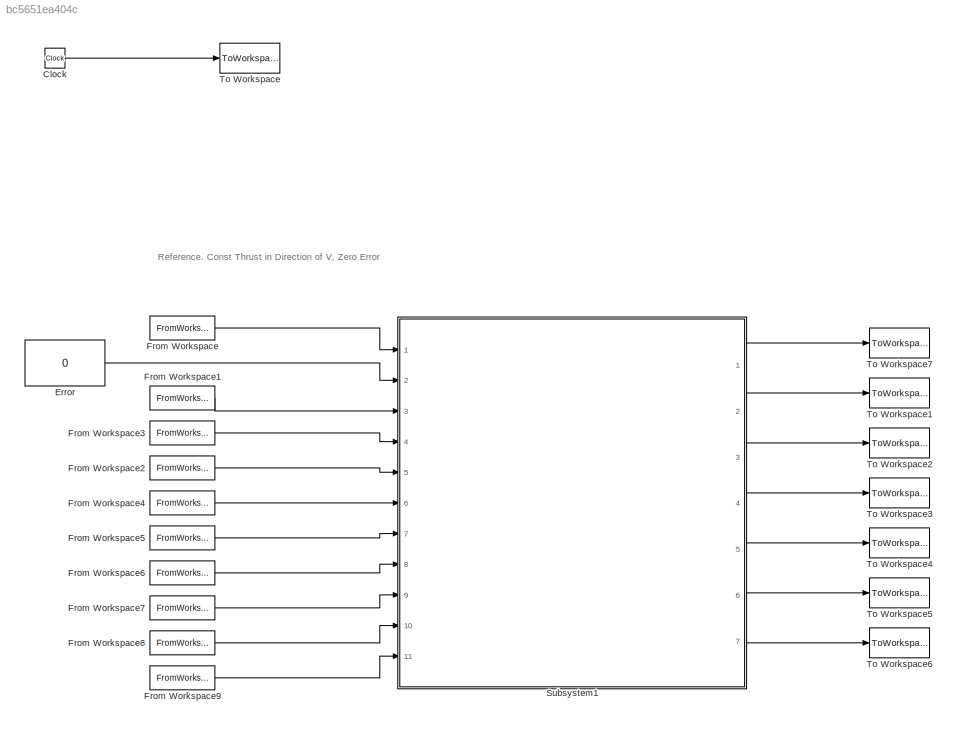
MODEL slx_bc5651ea404c
KIND model
CONFIG AbsTol = auto
CONFIG EnableMultiTasking = off
CONFIG FixedStep = 300
CONFIG InitFcn = % Enter your data here\n\ny10 = 152213668;\ny20 = 0;\ny30 = 0;\ny40 = 0;\ny50 = 34.5845;\ny60 = 0;\ny70 = 9700;
CONFIG MaxStep = auto
CONFIG MinStep = auto
CONFIG RelTol = 1e-3
CONFIG SampleTimeConstraint = Unconstrained
CONFIG Solver = ode4
CONFIG SolverName = ode4
CONFIG StartTime = 0.0
CONFIG StopTime = 10540800
WORKSPACE source: MAT-file member
WORKSPACE vx0 = -26
BLOCK [Clock] Clock
BLOCK [Constant] Error
  Value = 0
BLOCK [FromWorkspace] From Workspace
  SampleTime = 0
  VariableName = simin
  ZeroCross = on
BLOCK [FromWorkspace] From Workspace1
  SampleTime = 0
  VariableName = sim_e1
  ZeroCross = on
BLOCK [FromWorkspace] From Workspace2
  SampleTime = 0
  VariableName = sim_e3
  ZeroCross = on
BLOCK [FromWorkspace] From Workspace3
  SampleTime = 0
  VariableName = sim_e2
  ZeroCross = on
BLOCK [FromWorkspace] From Workspace4
  SampleTime = 0
  VariableName = sim_j1
  ZeroCross = on
BLOCK [FromWorkspace] From Workspace5
  SampleTime = 0
  VariableName = sim_j2
  ZeroCross = on
BLOCK [FromWorkspace] From Workspace6
  SampleTime = 0
  VariableName = sim_j3
  ZeroCross = on
BLOCK [FromWorkspace] From Workspace7
  SampleTime = 0
  VariableName = sim_m1
  ZeroCross = on
BLOCK [FromWorkspace] From Workspace8
  SampleTime = 0
  VariableName = sim_m2
  ZeroCross = on
BLOCK [FromWorkspace] From Workspace9
  SampleTime = 0
  VariableName = sim_m3
  ZeroCross = on
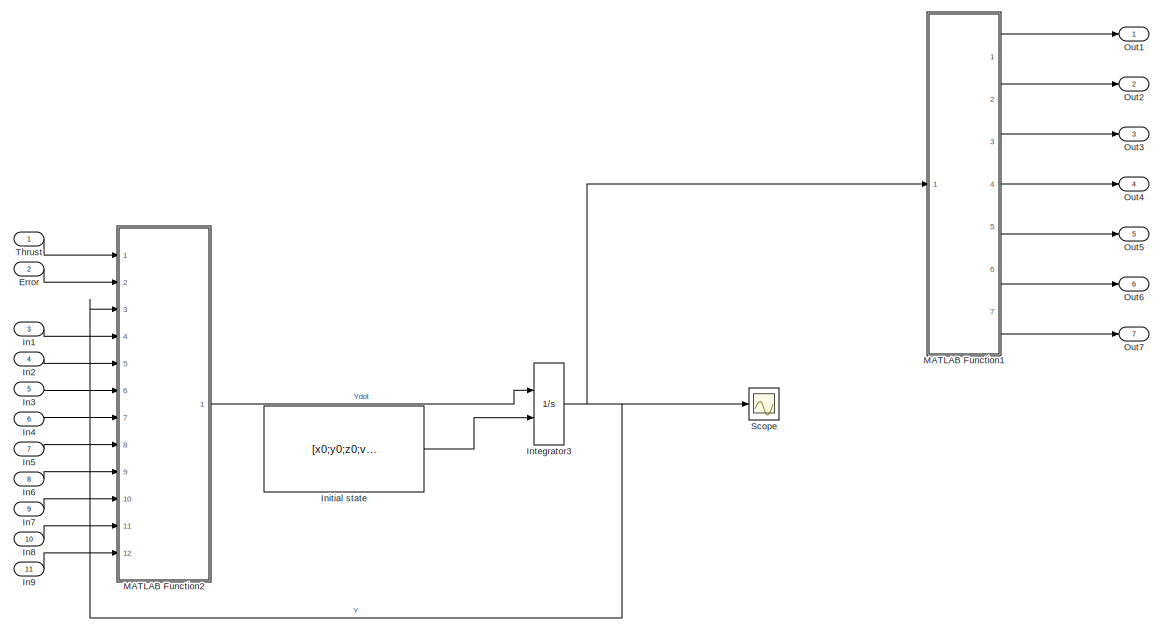
[diagram: Subsystem1 - part 1/2, center side, full height]
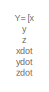
[diagram: Subsystem1 - part 2/2, middle left region]
BLOCK [SubSystem] Subsystem1
  Ports = [11, 7]
  RequestExecContextInheritance = off
BLOCK [Inport] Subsystem1/Error
  IconDisplay = Port number
  Port = 2
BLOCK [Inport] Subsystem1/In1
  IconDisplay = Port number
  Port = 3
BLOCK [Inport] Subsystem1/In2
  IconDisplay = Port number
  Port = 4
BLOCK [Inport] Subsystem1/In3
  IconDisplay = Port number
  Port = 5
BLOCK [Inport] Subsystem1/In4
  IconDisplay = Port number
  Port = 6
BLOCK [Inport] Subsystem1/In5
  IconDisplay = Port number
  Port = 7
BLOCK [Inport] Subsystem1/In6
  IconDisplay = Port number
  Port = 8
BLOCK [Inport] Subsystem1/In7
  IconDisplay = Port number
  Port = 9
BLOCK [Inport] Subsystem1/In8
  IconDisplay = Port number
  Port = 10
BLOCK [Inport] Subsystem1/In9
  IconDisplay = Port number
  Port = 11
BLOCK [Constant] Subsystem1/Initial state
  Value = [x0;y0;z0;vx0;vy0;vz0;y70]
BLOCK [Integrator] Subsystem1/Integrator3
  InitialCondition = [x0;y0;z0;vx0;vy0;vz0;y70]
  InitialConditionSource = external
  Ports = [2, 1]
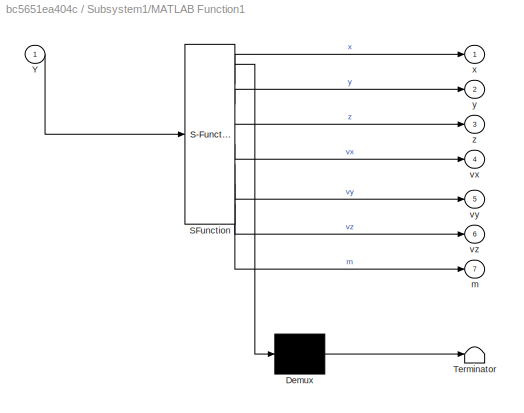
BLOCK [SubSystem] Subsystem1/MATLAB Function1
  ErrorFcn = Stateflow.Translate.translate
  PermitHierarchicalResolution = ExplicitOnly
  Ports = [1, 7]
  RequestExecContextInheritance = off
  SFBlockType = MATLAB Function
  TreatAsAtomicUnit = on
BLOCK [Demux] Subsystem1/MATLAB Function1/ Demux 
  Outputs = 1
  Ports = [1, 1]
BLOCK [S-Function] Subsystem1/MATLAB Function1/ SFunction 
  EnableBusSupport = on
  FunctionName = sf_sfun
  PortCounts = [1 8]
  Ports = [1, 8]
  SFcnIsStateOwnerBlock = off
  SFunctionDeploymentMode = off
  Tag = Stateflow S-Function PrevThrustTestingReturn 1
BLOCK [Terminator] Subsystem1/MATLAB Function1/ Terminator 
BLOCK [Inport] Subsystem1/MATLAB Function1/Y
  IconDisplay = Port number
BLOCK [Outport] Subsystem1/MATLAB Function1/m
  IconDisplay = Port number
  Port = 7
BLOCK [Outport] Subsystem1/MATLAB Function1/vx
  IconDisplay = Port number
  Port = 4
BLOCK [Outport] Subsystem1/MATLAB Function1/vy
  IconDisplay = Port number
  Port = 5
BLOCK [Outport] Subsystem1/MATLAB Function1/vz
  IconDisplay = Port number
  Port = 6
BLOCK [Outport] Subsystem1/MATLAB Function1/x
  IconDisplay = Port number
BLOCK [Outport] Subsystem1/MATLAB Function1/y
  IconDisplay = Port number
  Port = 2
BLOCK [Outport] Subsystem1/MATLAB Function1/z
  IconDisplay = Port number
  Port = 3
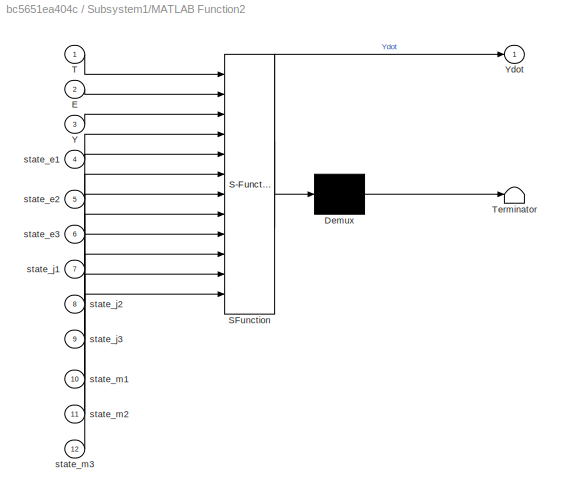
BLOCK [SubSystem] Subsystem1/MATLAB Function2
  ErrorFcn = Stateflow.Translate.translate
  PermitHierarchicalResolution = ExplicitOnly
  Ports = [12, 1]
  RequestExecContextInheritance = off
  SFBlockType = MATLAB Function
  TreatAsAtomicUnit = on
BLOCK [Demux] Subsystem1/MATLAB Function2/ Demux 
  Outputs = 1
  Ports = [1, 1]
BLOCK [S-Function] Subsystem1/MATLAB Function2/ SFunction 
  EnableBusSupport = on
  FunctionName = sf_sfun
  PortCounts = [12 2]
  Ports = [12, 2]
  SFcnIsStateOwnerBlock = off
  SFunctionDeploymentMode = off
  Tag = Stateflow S-Function PrevThrustTestingReturn 3
BLOCK [Terminator] Subsystem1/MATLAB Function2/ Terminator 
BLOCK [Inport] Subsystem1/MATLAB Function2/E
  IconDisplay = Port number
  Port = 2
BLOCK [Inport] Subsystem1/MATLAB Function2/T
  IconDisplay = Port number
BLOCK [Inport] Subsystem1/MATLAB Function2/Y
  IconDisplay = Port number
  Port = 3
BLOCK [Outport] Subsystem1/MATLAB Function2/Ydot
  IconDisplay = Port number
BLOCK [Inport] Subsystem1/MATLAB Function2/state_e1
  IconDisplay = Port number
  Port = 4
BLOCK [Inport] Subsystem1/MATLAB Function2/state_e2
  IconDisplay = Port number
  Port = 5
BLOCK [Inport] Subsystem1/MATLAB Function2/state_e3
  IconDisplay = Port number
  Port = 6
BLOCK [Inport] Subsystem1/MATLAB Function2/state_j1
  IconDisplay = Port number
  Port = 7
BLOCK [Inport] Subsystem1/MATLAB Function2/state_j2
  IconDisplay = Port number
  Port = 8
BLOCK [Inport] Subsystem1/MATLAB Function2/state_j3
  IconDisplay = Port number
  Port = 9
BLOCK [Inport] Subsystem1/MATLAB Function2/state_m1
  IconDisplay = Port number
  Port = 10
BLOCK [Inport] Subsystem1/MATLAB Function2/state_m2
  IconDisplay = Port number
  Port = 11
BLOCK [Inport] Subsystem1/MATLAB Function2/state_m3
  IconDisplay = Port number
  Port = 12
BLOCK [Outport] Subsystem1/Out1
  IconDisplay = Port number
BLOCK [Outport] Subsystem1/Out2
  IconDisplay = Port number
  Port = 2
BLOCK [Outport] Subsystem1/Out3
  IconDisplay = Port number
  Port = 3
BLOCK [Outport] Subsystem1/Out4
  IconDisplay = Port number
  Port = 4
BLOCK [Outport] Subsystem1/Out5
  IconDisplay = Port number
  Port = 5
BLOCK [Outport] Subsystem1/Out6
  IconDisplay = Port number
  Port = 6
BLOCK [Outport] Subsystem1/Out7
  IconDisplay = Port number
  Port = 7
BLOCK [Scope] Subsystem1/Scope
  Floating = off
  NumInputPorts = 1
  Ports = [1]
  ScopeSpecificationString = Simulink.scopes.TimeScopeBlockCfg('CurrentConfiguration', extmgr.ConfigurationSet(extmgr.Configuration('Core','General UI',true),extmgr.Configuration('Core','Source UI',true),extmgr.Configuration('Sources','WiredSimulink',true),extmgr.Configuration('Visuals','Time Domain',true,'SerializedDisplays',{struct('MinYLimReal','-177803682.97631','MaxYLimReal','256651457.44688','YLabelReal','','MinYLimMag'...<+1451ch>
BLOCK [Inport] Subsystem1/Thrust
  IconDisplay = Port number
BLOCK [ToWorkspace] To Workspace
  FixptAsFi = on
  MaxDataPoints = inf
  Ports = [1]
  SampleTime = -1
  Save2DSignal = 3-D array (concatenate along third dimension)
  VariableName = Time
BLOCK [ToWorkspace] To Workspace1
  FixptAsFi = on
  MaxDataPoints = inf
  Ports = [1]
  SampleTime = -1
  Save2DSignal = 3-D array (concatenate along third dimension)
  VariableName = y
BLOCK [ToWorkspace] To Workspace2
  FixptAsFi = on
  MaxDataPoints = inf
  Ports = [1]
  SampleTime = -1
  Save2DSignal = 3-D array (concatenate along third dimension)
  VariableName = z
BLOCK [ToWorkspace] To Workspace3
  FixptAsFi = on
  MaxDataPoints = inf
  Ports = [1]
  SampleTime = -1
  Save2DSignal = 3-D array (concatenate along third dimension)
  VariableName = vx
BLOCK [ToWorkspace] To Workspace4
  FixptAsFi = on
  MaxDataPoints = inf
  Ports = [1]
  SampleTime = -1
  Save2DSignal = 3-D array (concatenate along third dimension)
  VariableName = vy
BLOCK [ToWorkspace] To Workspace5
  FixptAsFi = on
  MaxDataPoints = inf
  Ports = [1]
  SampleTime = -1
  Save2DSignal = 3-D array (concatenate along third dimension)
  VariableName = vz
BLOCK [ToWorkspace] To Workspace6
  FixptAsFi = on
  MaxDataPoints = inf
  Ports = [1]
  SampleTime = -1
  Save2DSignal = 3-D array (concatenate along third dimension)
  VariableName = m
BLOCK [ToWorkspace] To Workspace7
  FixptAsFi = on
  MaxDataPoints = inf
  Ports = [1]
  SampleTime = -1
  Save2DSignal = 3-D array (concatenate along third dimension)
  VariableName = x
ANNOTATION (root): Reference. Const Thrust in Direction of V, Zero Error
ANNOTATION Subsystem1: Y= [x y z xdot ydot zdot m]
LINE Clock:1 -> To Workspace:1
LINE Error:1 -> Subsystem1:2
LINE From Workspace1:1 -> Subsystem1:3
LINE From Workspace2:1 -> Subsystem1:5
LINE From Workspace3:1 -> Subsystem1:4
LINE From Workspace4:1 -> Subsystem1:6
LINE From Workspace5:1 -> Subsystem1:7
LINE From Workspace6:1 -> Subsystem1:8
LINE From Workspace7:1 -> Subsystem1:9
LINE From Workspace8:1 -> Subsystem1:10
LINE From Workspace9:1 -> Subsystem1:11
LINE From Workspace:1 -> Subsystem1:1
LINE Subsystem1/Error:1 -> Subsystem1/MATLAB Function2:2
LINE Subsystem1/In1:1 -> Subsystem1/MATLAB Function2:4
LINE Subsystem1/In2:1 -> Subsystem1/MATLAB Function2:5
LINE Subsystem1/In3:1 -> Subsystem1/MATLAB Function2:6
LINE Subsystem1/In4:1 -> Subsystem1/MATLAB Function2:7
LINE Subsystem1/In5:1 -> Subsystem1/MATLAB Function2:8
LINE Subsystem1/In6:1 -> Subsystem1/MATLAB Function2:9
LINE Subsystem1/In7:1 -> Subsystem1/MATLAB Function2:10
LINE Subsystem1/In8:1 -> Subsystem1/MATLAB Function2:11
LINE Subsystem1/In9:1 -> Subsystem1/MATLAB Function2:12
LINE Subsystem1/Initial state:1 -> Subsystem1/Integrator3:2
NET Subsystem1/Integrator3:1 -> Subsystem1/MATLAB Function1:1, Subsystem1/MATLAB Function2:3, Subsystem1/Scope:1
LINE Subsystem1/MATLAB Function1:1 -> Subsystem1/Out1:1
LINE Subsystem1/MATLAB Function1:2 -> Subsystem1/Out2:1
LINE Subsystem1/MATLAB Function1:3 -> Subsystem1/Out3:1
LINE Subsystem1/MATLAB Function1:4 -> Subsystem1/Out4:1
LINE Subsystem1/MATLAB Function1:5 -> Subsystem1/Out5:1
LINE Subsystem1/MATLAB Function1:6 -> Subsystem1/Out6:1
LINE Subsystem1/MATLAB Function1:7 -> Subsystem1/Out7:1
LINE Subsystem1/MATLAB Function2:1 -> Subsystem1/Integrator3:1
LINE Subsystem1/Thrust:1 -> Subsystem1/MATLAB Function2:1
LINE Subsystem1:1 -> To Workspace7:1
LINE Subsystem1:2 -> To Workspace1:1
LINE Subsystem1:3 -> To Workspace2:1
LINE Subsystem1:4 -> To Workspace3:1
LINE Subsystem1:5 -> To Workspace4:1
LINE Subsystem1:6 -> To Workspace5:1
LINE Subsystem1:7 -> To Workspace6:1
note: NET lines group one-source signal fan-out (src -> all destinations, sorted); 1:1 wires keep LINE
CHART Subsystem1/MATLAB Function1 states=1 transitions=1
  STATE_LABEL 'eML_blk_kernel()'
  STATE_LABEL 'SCRIPT:\nfunction [x,y,z,vx,vy,vz,m] = fcn(Y)\n% This function does ......,.\n%\n% constants\n \n\n% reading the OED variable from Y\nx = Y(1);  % x\ny = Y(2);  % y\nz = Y(3);  % z\nvx = Y(4);  % xdot\nvy = Y(5);  % ydot\nvz = Y(6);  % zdot\nm  = Y(7);  % m\n\n\n\n \n% end of function'
CHART Subsystem1/MATLAB Function2 states=1 transitions=1
  STATE_LABEL 'eML_blk_kernel()'
  STATE_LABEL 'SCRIPT:\nfunction Ydot = fcn(T,E,Y,state_e1,state_e2,state_e3,state_j1,state_j2,state_j3,state_m1,state_m2,state_m3)\n% This function does ......,.\n% T = thrust [N]\n% E = error/noise\n\n% constants\nIsp = 850;\ng0 = 9.81*10^-3;\nG      = 6.67408*10^-20;    % Gravitational Constant [km^3/kgs^2]\n\nm_e    = 5.9723*10^24;      % Mass of Earth [kg]\nm_m    = 641.9*10^21;       % Mass of Mars [kg]\nm_j    = 1.898...<+1390ch>'
